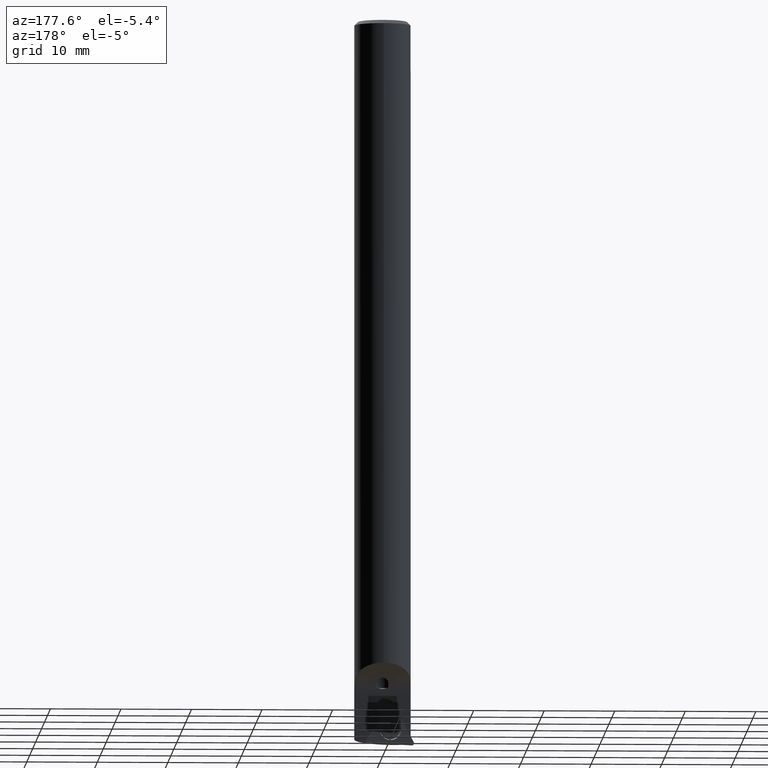
[diagram: clean part render]
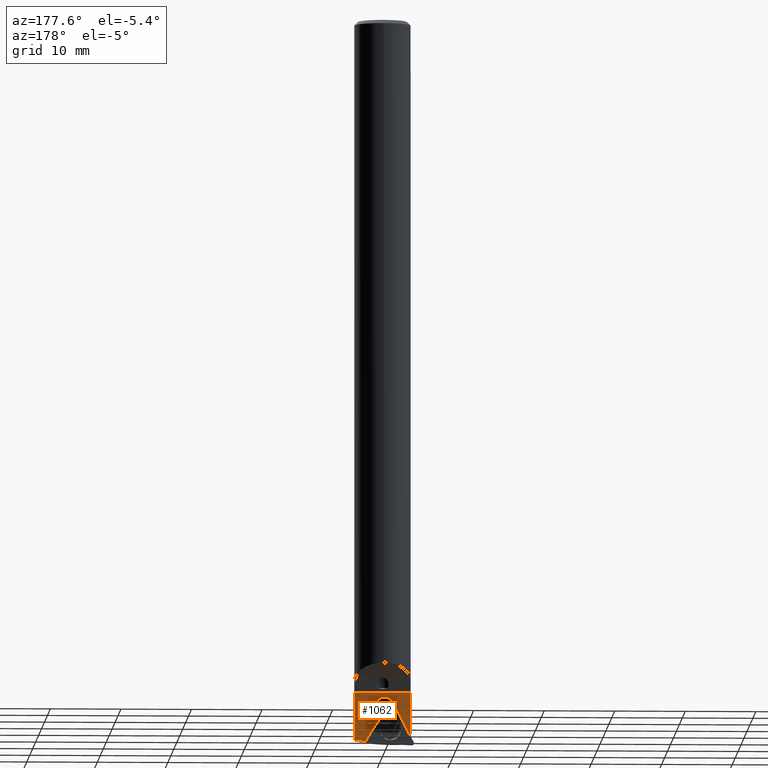
[diagram: same view with one face highlighted and labeled with its STEP entity id]
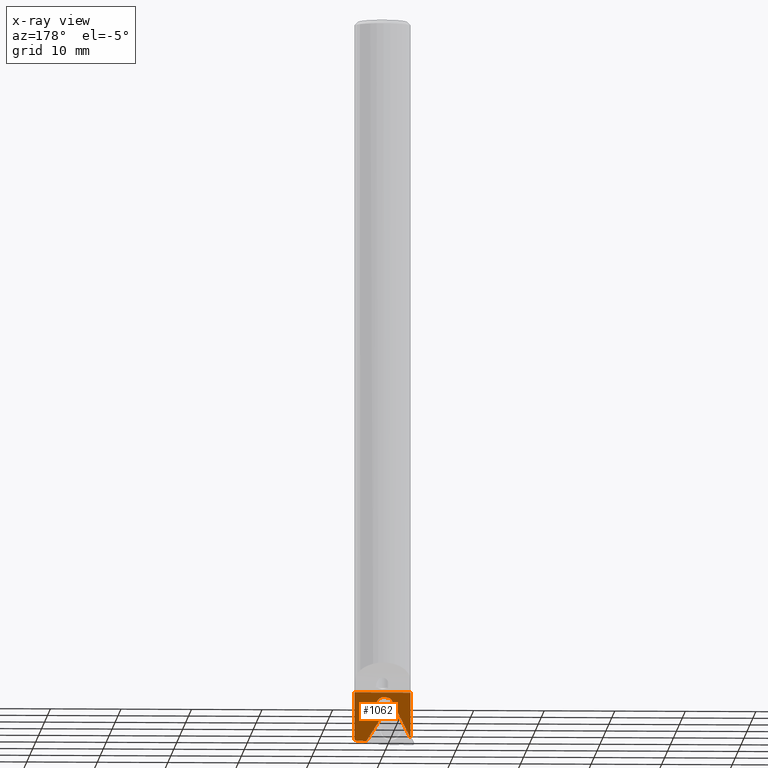
[diagram: x-ray of the same camera — body ghosted, the highlighted face saturated]
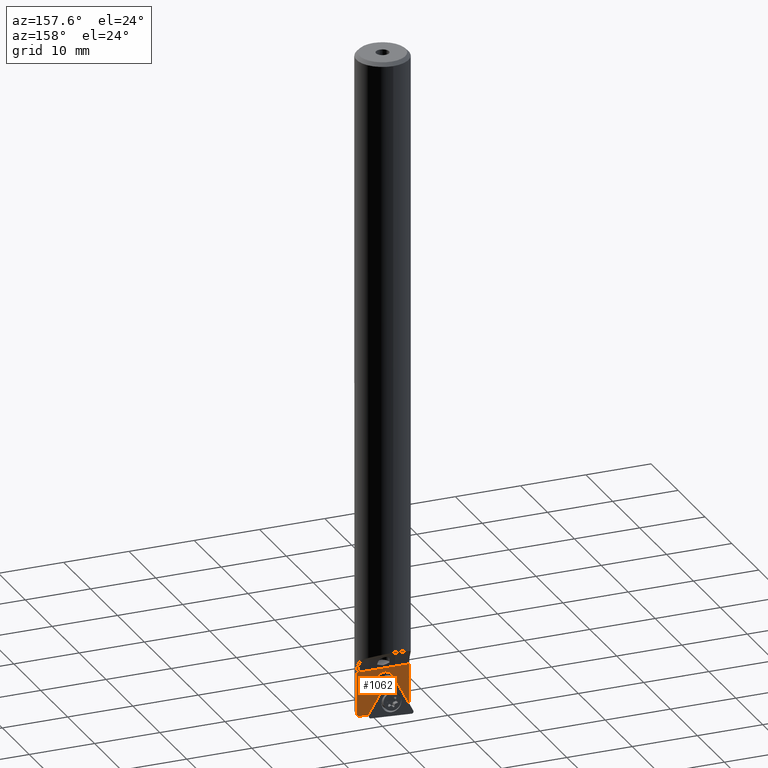
[diagram: same view with one face highlighted and labeled with its STEP entity id]
A machine part, auxiliary view. The second image highlights one B-rep face of the part: STEP entity #1062.
The next image is the same camera in x-ray: the body ghosted, the highlighted face saturated — about 0% of this face is hidden behind the body in this view.
A second angle (auxiliary view) of the same face is appended — the face is thin or edge-on in the first view.
In plain terms, the highlighted planar face has unit normal (0, -1, -0).
Its self-contained STEP definition (entity closure, byte-faithful):
#454=VERTEX_POINT('NONE',#1296);
#674=EDGE_CURVE('NONE',#882,#1016,#1545,.F.);
#680=VERTEX_POINT('NONE',#1551);
#704=EDGE_CURVE('NONE',#1234,#942,#1578,.T.);
#722=VERTEX_POINT('NONE',#1598);
#730=EDGE_CURVE('NONE',#1016,#1076,#1608,.T.);
#826=EDGE_CURVE('NONE',#1068,#1076,#1720,.T.);
#870=EDGE_CURVE('NONE',#1234,#1044,#1768,.T.);
#880=EDGE_CURVE('NONE',#454,#1044,#1779,.T.);
#882=VERTEX_POINT('NONE',#1781);
#942=VERTEX_POINT('NONE',#1846);
#954=EDGE_CURVE('NONE',#942,#722,#1859,.F.);
#980=VERTEX_POINT('NONE',#1887);
#1010=EDGE_CURVE('NONE',#1166,#680,#1919,.T.);
#1016=VERTEX_POINT('NONE',#1925);
#1024=EDGE_CURVE('NONE',#680,#1068,#1933,.T.);
#1044=VERTEX_POINT('NONE',#1955);
#1062=ADVANCED_FACE('NONE',(#1974),#1975,.F.);
#1068=VERTEX_POINT('NONE',#1981);
#1076=VERTEX_POINT('NONE',#1989);
#1100=EDGE_CURVE('NONE',#980,#454,#2014,.T.);
#1148=EDGE_CURVE('NONE',#980,#882,#2065,.T.);
#1166=VERTEX_POINT('NONE',#2086);
#1168=EDGE_CURVE('NONE',#722,#1166,#2088,.T.);
#1234=VERTEX_POINT('NONE',#2163);
#1296=CARTESIAN_POINT('',(-1.34305532345143,0.199999999999999,-9.55411276850385));
#1545=ELLIPSE('',#3149,1.10420182129769,1.10000000000001);
#1551=CARTESIAN_POINT('',(3.7102914272569,0.199999999999999,-15.2365005719086));
#1578=LINE('',#3206,#3207);
#1598=CARTESIAN_POINT('',(3.99499687108764,0.2,-8.4));
#1608=LINE('',#3243,#3244);
#1720=LINE('',#3388,#3389);
#1768=LINE('',#3455,#3456);
#1779=LINE('',#3469,#3470);
#1781=CARTESIAN_POINT('',(0.88556991249007,0.199999999999999,-10.0747289275352));
#1846=CARTESIAN_POINT('',(-3.99499687108764,0.2,-8.40000000000002));
#1859=LINE('',#3613,#3614);
#1887=CARTESIAN_POINT('',(-0.671992704990823,0.199999999999999,-9.12867748274304));
#1919=B_SPLINE_CURVE_WITH_KNOTS('',3,(#3700,#3701,#3702,#3703,#3704,#3705,#3706,#3707,#3708,#3709),.UNSPECIFIED.,.F.,.F.,(4,3,3,4),(0.0,0.5,0.797304030971223,1.0),.UNSPECIFIED.);
#1925=CARTESIAN_POINT('',(0.767294554035028,0.199999999999999,-10.6337860605397));
#1933=LINE('',#3729,#3730);
#1955=CARTESIAN_POINT('',(-3.8668056638299,0.199999999999999,-14.6886704444868));
#1974=FACE_OUTER_BOUND('',#3778,.T.);
#1975=PLANE('',#3779);
#1981=CARTESIAN_POINT('',(2.26486285924517,0.2,-15.3122522732704));
#1989=CARTESIAN_POINT('',(0.121792030729451,0.199999999999999,-11.9058383111163));
#2014=ELLIPSE('',#3855,0.763667721892554,0.760680197930857);
#2065=ELLIPSE('',#3966,1.10420182129769,1.10000000000001);
#2086=CARTESIAN_POINT('',(3.99499687108763,0.199999999999998,-14.9368707566175));
#2088=LINE('',#4027,#4028);
#2163=CARTESIAN_POINT('',(-3.99499687108764,0.199999999999998,-14.6230867115586));
#3149=AXIS2_PLACEMENT_3D('',#5894,#5895,#5896);
#3206=CARTESIAN_POINT('',(-3.99499687108764,0.199999999999998,0.0));
#3207=VECTOR('',#5927,1.0);
#3243=CARTESIAN_POINT('',(-3.92075552368941,0.2,-19.8722389509278));
#3244=VECTOR('',#5968,1.0);
#3388=CARTESIAN_POINT('',(-0.918299285079248,0.199999999999999,-10.2526117667842));
#3389=VECTOR('',#6125,1.0);
#3455=CARTESIAN_POINT('',(-13.4587580110648,0.199999999999999,-9.78134447059415));
#3456=VECTOR('',#6201,1.0);
#3469=CARTESIAN_POINT('',(-7.96410856202644,0.2,-23.0246130732679));
#3470=VECTOR('',#6213,1.0);
#3613=CARTESIAN_POINT('',(-30.0,0.199999999999999,-8.40000000000011));
#3614=VECTOR('',#6298,1.0);
#3700=CARTESIAN_POINT('',(3.99499687108764,0.2,-14.9368707566175));
#3701=CARTESIAN_POINT('',(3.99499687099503,0.2,-15.0127591940276));
#3702=CARTESIAN_POINT('',(3.96462379520998,0.2,-15.0882453445137));
#3703=CARTESIAN_POINT('',(3.91210713809458,0.2,-15.1430918342803));
#3704=CARTESIAN_POINT('',(3.88088031038749,0.2,-15.1757039992648));
#3705=CARTESIAN_POINT('',(3.84230714260314,0.2,-15.2011000549047));
#3706=CARTESIAN_POINT('',(3.80039773017862,0.2,-15.2177225896067));
#3707=CARTESIAN_POINT('',(3.77182472719894,0.2,-15.2290555028138));
#3708=CARTESIAN_POINT('',(3.7410138187678,0.2,-15.2348904795904));
#3709=CARTESIAN_POINT('',(3.7102914272569,0.2,-15.2365005719086));
#3729=CARTESIAN_POINT('',(-18.1099140568132,0.2,-16.3800490848282));
#3730=VECTOR('',#6373,1.0);
#3778=EDGE_LOOP('',(#6404,#6405,#6406,#6407,#6408,#6409,#6410,#6411,#6412,#6413,#6414,#6415));
#3779=AXIS2_PLACEMENT_3D('',#6416,#6417,#6418);
#3855=AXIS2_PLACEMENT_3D('',#6447,#6448,#6449);
#3966=AXIS2_PLACEMENT_3D('',#6500,#6501,#6502);
#4027=CARTESIAN_POINT('',(3.99499687108764,0.199999999999998,0.0));
#4028=VECTOR('',#6536,1.0);
#5894=CARTESIAN_POINT('',(-0.212922575739969,0.199999999999999,-10.1322984794024));
#5895=DIRECTION('',(4.05918931463335E-031,-1.0,-1.16225990954742E-016));
#5896=DIRECTION('',(0.052335956242937,1.16066707273523E-016,-0.998629534754574));
#5927=DIRECTION('',(0.0,-0.0,1.0));
#5968=DIRECTION('',(-0.452520335531924,1.03645002074732E-016,-0.891754083775384));
#6125=DIRECTION('',(-0.532509256803904,-9.83764890150565E-017,0.846424179367623));
#6201=DIRECTION('',(0.890255107506809,5.29365491009491E-017,-0.455462230660283));
#6213=DIRECTION('',(-0.441116696635906,1.04306986925621E-016,-0.897449753439727));
#6298=DIRECTION('',(-1.0,0.0,-3.46944695195362E-015));
#6373=DIRECTION('',(-0.998629534754574,6.08279837689892E-018,-0.0523359562429366));
#6404=ORIENTED_EDGE('',*,*,#1168,.T.);
#6405=ORIENTED_EDGE('',*,*,#1010,.T.);
#6406=ORIENTED_EDGE('',*,*,#1024,.T.);
#6407=ORIENTED_EDGE('',*,*,#826,.T.);
#6408=ORIENTED_EDGE('',*,*,#730,.F.);
#6409=ORIENTED_EDGE('',*,*,#674,.F.);
#6410=ORIENTED_EDGE('',*,*,#1148,.F.);
#6411=ORIENTED_EDGE('',*,*,#1100,.T.);
#6412=ORIENTED_EDGE('',*,*,#880,.T.);
#6413=ORIENTED_EDGE('',*,*,#870,.F.);
#6414=ORIENTED_EDGE('',*,*,#704,.T.);
#6415=ORIENTED_EDGE('',*,*,#954,.T.);
#6416=CARTESIAN_POINT('',(-29.9999999999999,0.2,-18.894446500535));
#6417=DIRECTION('',(4.06465829336164E-031,-1.0,-1.16225990954742E-016));
#6418=DIRECTION('',(-1.0,-4.06465829336164E-031,0.0));
#6447=CARTESIAN_POINT('',(-0.660867970763724,0.199999999999999,-9.89225988013738));
#6448=DIRECTION('',(4.05803097838248E-031,-1.0,-1.16225990954742E-016));
#6449=DIRECTION('',(-0.0523359562427981,-1.16066707273524E-016,0.998629534754582));
#6500=CARTESIAN_POINT('',(-0.212922575739969,0.199999999999999,-10.1322984794024));
#6501=DIRECTION('',(-4.05918931463335E-031,1.0,1.16225990954742E-016));
#6502=DIRECTION('',(0.052335956242937,1.16066707273523E-016,-0.998629534754574));
#6536=DIRECTION('',(0.0,0.0,-1.0));